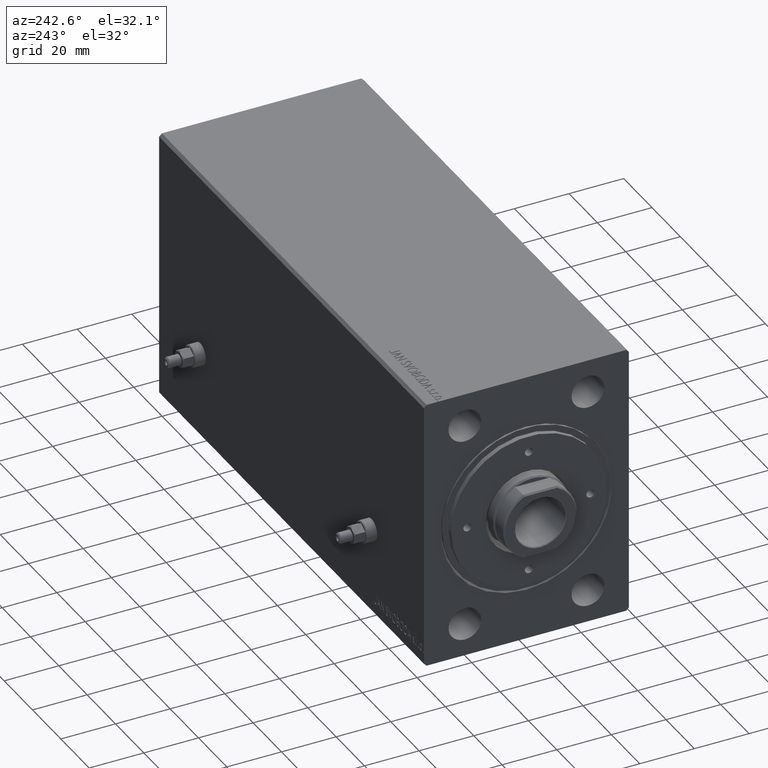
[diagram: clean part render]
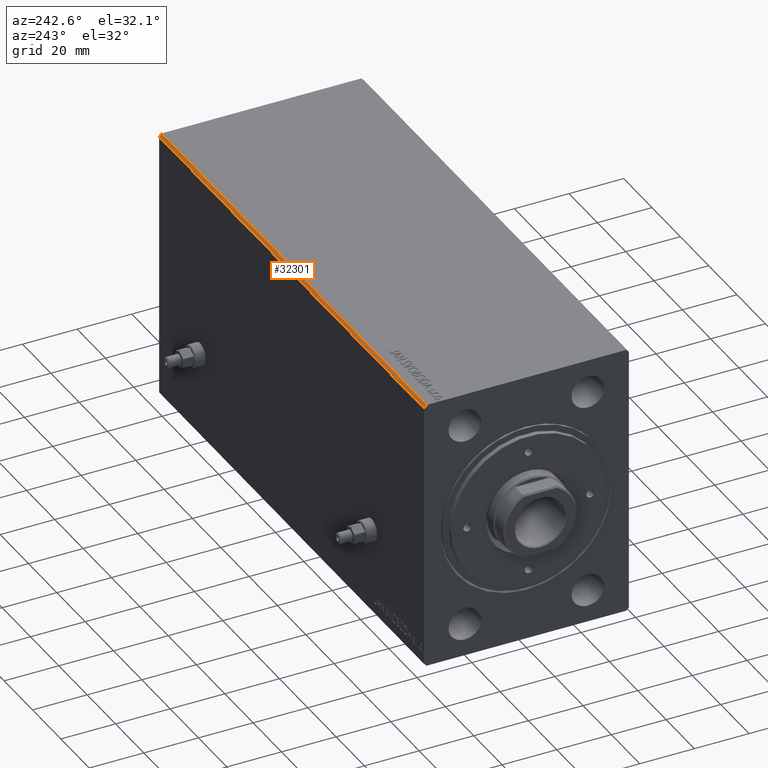
[diagram: same view with one face highlighted and labeled with its STEP entity id]
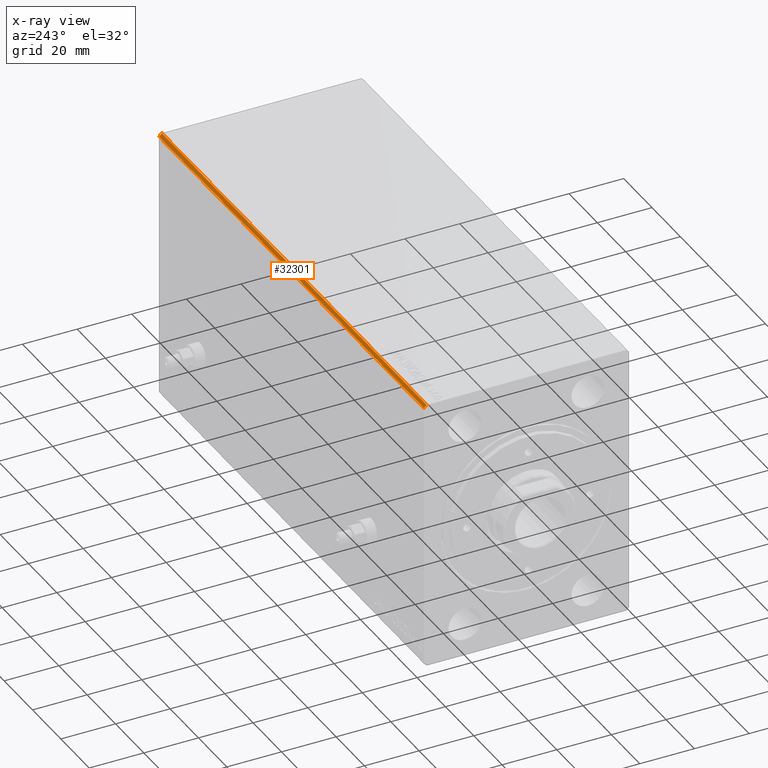
[diagram: x-ray of the same camera — body ghosted, the highlighted face saturated]
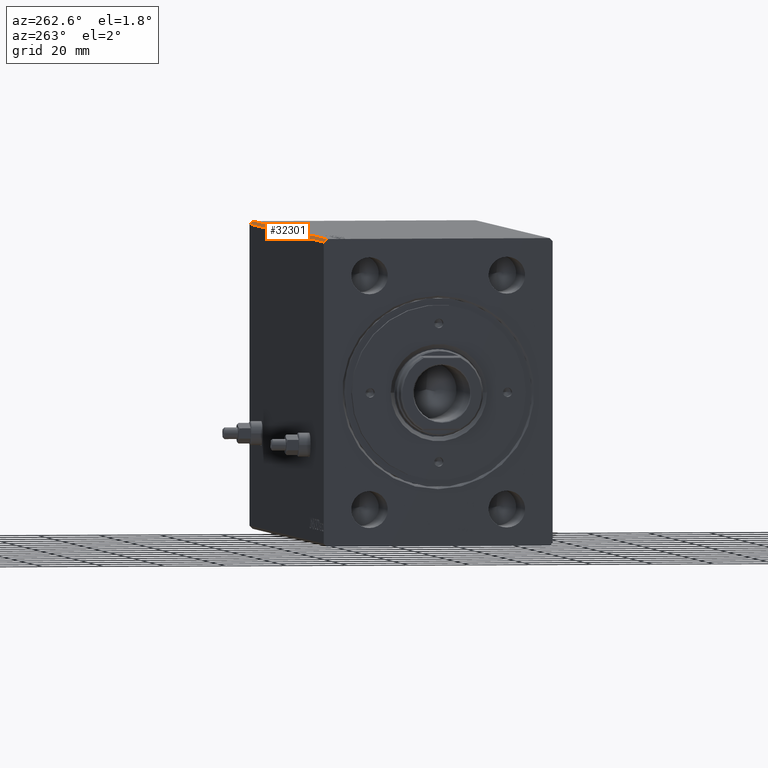
[diagram: same view with one face highlighted and labeled with its STEP entity id]
A machine part, auxiliary view. The second image highlights one B-rep face of the part: STEP entity #32301.
The next image is the same camera in x-ray: the body ghosted, the highlighted face saturated — about 0% of this face is hidden behind the body in this view.
A second angle (auxiliary view) of the same face is appended — the face is thin or edge-on in the first view.
In plain terms, the highlighted planar face has unit normal (0, -0.7071, -0.7071).
Its self-contained STEP definition (entity closure, byte-faithful):
#210 = CARTESIAN_POINT ( 'NONE',  ( 0.000000000000000000, 36.50000000000000711, 50.00000000000000000 ) ) ;
#507 = FACE_OUTER_BOUND ( 'NONE', #29537, .T. ) ;
#750 = VECTOR ( 'NONE', #2627, 1000.000000000000000 ) ;
#2627 = DIRECTION ( 'NONE',  ( -1.000000000000000000, -0.000000000000000000, -0.000000000000000000 ) ) ;
#2702 = LINE ( 'NONE', #16601, #20270 ) ;
#3090 = CARTESIAN_POINT ( 'NONE',  ( 187.0000000000000000, 36.50000000000000711, 50.00000000000000000 ) ) ;
#6686 = VECTOR ( 'NONE', #22121, 1000.000000000000114 ) ;
#6728 = ORIENTED_EDGE ( 'NONE', *, *, #16506, .F. ) ;
#7990 = VERTEX_POINT ( 'NONE', #38682 ) ;
#8176 = ORIENTED_EDGE ( 'NONE', *, *, #14412, .T. ) ;
#11683 = ORIENTED_EDGE ( 'NONE', *, *, #36719, .T. ) ;
#14412 = EDGE_CURVE ( 'NONE', #34159, #34825, #15522, .T. ) ;
#15522 = LINE ( 'NONE', #36704, #6686 ) ;
#16506 = EDGE_CURVE ( 'NONE', #7990, #34825, #40911, .T. ) ;
#16601 = CARTESIAN_POINT ( 'NONE',  ( 187.0000000000000000, 37.50000000000000711, 49.00000000000000000 ) ) ;
#20270 = VECTOR ( 'NONE', #44399, 1000.000000000000000 ) ;
#22121 = DIRECTION ( 'NONE',  ( 0.000000000000000000, -0.7071067811865474617, 0.7071067811865474617 ) ) ;
#26271 = DIRECTION ( 'NONE',  ( 0.000000000000000000, -0.7071067811865474617, 0.7071067811865474617 ) ) ;
#26446 = CARTESIAN_POINT ( 'NONE',  ( 187.0000000000000000, 37.50000000000000711, 49.00000000000000000 ) ) ;
#29537 = EDGE_LOOP ( 'NONE', ( #8176, #6728, #44604, #11683 ) ) ;
#29699 = LINE ( 'NONE', #36984, #36236 ) ;
#29883 = PLANE ( 'NONE',  #44176 ) ;
#31493 = CARTESIAN_POINT ( 'NONE',  ( 187.0000000000000000, 37.50000000000000711, 49.00000000000000000 ) ) ;
#32301 = ADVANCED_FACE ( 'NONE', ( #507 ), #29883, .F. ) ;
#33302 = DIRECTION ( 'NONE',  ( 0.000000000000000000, 0.7071067811865474617, -0.7071067811865474617 ) ) ;
#34159 = VERTEX_POINT ( 'NONE', #43901 ) ;
#34825 = VERTEX_POINT ( 'NONE', #210 ) ;
#35939 = EDGE_CURVE ( 'NONE', #43579, #7990, #29699, .T. ) ;
#36236 = VECTOR ( 'NONE', #26271, 1000.000000000000114 ) ;
#36704 = CARTESIAN_POINT ( 'NONE',  ( 0.000000000000000000, 37.50000000000000711, 49.00000000000000000 ) ) ;
#36719 = EDGE_CURVE ( 'NONE', #43579, #34159, #2702, .T. ) ;
#36984 = CARTESIAN_POINT ( 'NONE',  ( 187.0000000000000000, 37.50000000000000711, 49.00000000000000000 ) ) ;
#38682 = CARTESIAN_POINT ( 'NONE',  ( 187.0000000000000000, 36.50000000000000711, 50.00000000000000000 ) ) ;
#40353 = DIRECTION ( 'NONE',  ( 0.000000000000000000, -0.7071067811865475727, -0.7071067811865475727 ) ) ;
#40911 = LINE ( 'NONE', #3090, #750 ) ;
#43579 = VERTEX_POINT ( 'NONE', #31493 ) ;
#43901 = CARTESIAN_POINT ( 'NONE',  ( 0.000000000000000000, 37.50000000000000711, 49.00000000000000000 ) ) ;
#44176 = AXIS2_PLACEMENT_3D ( 'NONE', #26446, #40353, #33302 ) ;
#44399 = DIRECTION ( 'NONE',  ( -1.000000000000000000, -0.000000000000000000, -0.000000000000000000 ) ) ;
#44604 = ORIENTED_EDGE ( 'NONE', *, *, #35939, .F. ) ;